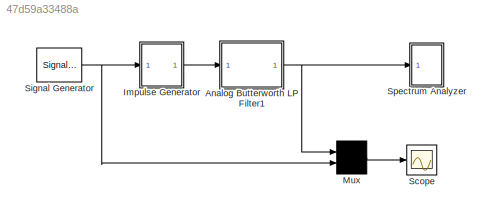
MODEL slx_47d59a33488a
KIND model
CONFIG AbsTol = 1e-6
CONFIG FixedStep = auto
CONFIG MaxStep = .05
CONFIG MinStep = auto
CONFIG RelTol = 1e-3
CONFIG SampleTimeConstraint = Unconstrained
CONFIG Solver = ode45
CONFIG SolverMode = SingleTasking
CONFIG SolverName = ode45
CONFIG StartTime = 0.0
CONFIG StopTime = 120.0
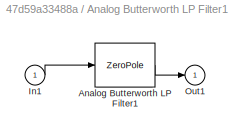
BLOCK [SubSystem] Analog Butterworth LP Filter1
  Ports = [1, 1]
  RequestExecContextInheritance = off
  Variant = off
BLOCK [ZeroPole] Analog Butterworth LP Filter1/Analog Butterworth LP Filter1
  Gain = k
  Poles = p
  Zeros = z
BLOCK [Inport] Analog Butterworth LP Filter1/In1
  IconDisplay = Port number
BLOCK [Outport] Analog Butterworth LP Filter1/Out1
  IconDisplay = Port number
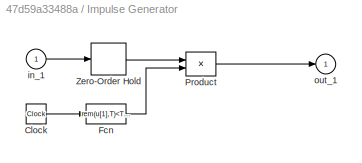
BLOCK [SubSystem] Impulse Generator
  Ports = [1, 1]
  RequestExecContextInheritance = off
  ShowPortLabels = none
  Variant = off
BLOCK [Clock] Impulse Generator/Clock
BLOCK [Fcn] Impulse Generator/Fcn
  Expr = rem(u[1],T)<T/L
BLOCK [Product] Impulse Generator/Product
  Ports = [2, 1]
BLOCK [ZeroOrderHold] Impulse Generator/Zero-Order Hold
  SampleTime = T
BLOCK [Inport] Impulse Generator/in_1
  IconDisplay = Port number
BLOCK [Outport] Impulse Generator/out_1
  IconDisplay = Port number
  InitialOutput = 0
BLOCK [Mux] Mux
  Inputs = 2
  Ports = [2, 1]
BLOCK [Scope] Scope
  Ports = [1]
  ScopeSpecificationString = Simulink.scopes.TimeScopeBlockCfg('CurrentConfiguration', extmgr.ConfigurationSet(extmgr.Configuration('Core','General UI',true),extmgr.Configuration('Core','Source UI',true),extmgr.Configuration('Sources','WiredSimulink',true,'DataLoggingSaveFormat','Array','DataLoggingLimitDataPoints',true,'DataLoggingDecimation','1','DataLoggingDecimateData',true),extmgr.Configuration('Visuals','Time Domain',tr...<+1767ch>
BLOCK [SignalGenerator] Signal Generator
  Amplitude = 1.000000
  Frequency = 0.8
  Ports = [0, 1]
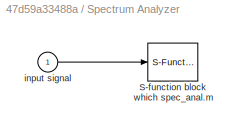
BLOCK [SubSystem] Spectrum Analyzer
  CopyFcn = sfunyst([],[],[],'CopyBlock')
  DeleteFcn = sfunyst([],[],[],'DeleteBlock')
  LoadFcn = sfunyst([],[],[],'LoadBlock')
  Ports = [1]
  RequestExecContextInheritance = off
  ShowPortLabels = none
  Variant = off
BLOCK [S-Function] Spectrum Analyzer/S-function block which spec_anal.m
  EnableBusSupport = off
  FunctionName = SpecAnal
  Parameters = N,T_s,plot_period
  Ports = [1]
  SFunctionDeploymentMode = off
BLOCK [Inport] Spectrum Analyzer/input signal
  IconDisplay = Port number
LINE Analog Butterworth LP Filter1/Analog Butterworth LP Filter1:1 -> Analog Butterworth LP Filter1/Out1:1
LINE Analog Butterworth LP Filter1/In1:1 -> Analog Butterworth LP Filter1/Analog Butterworth LP Filter1:1
NET Analog Butterworth LP Filter1:1 -> Mux:1, Spectrum Analyzer:1
LINE Impulse Generator/Clock:1 -> Impulse Generator/Fcn:1
LINE Impulse Generator/Fcn:1 -> Impulse Generator/Product:2
LINE Impulse Generator/Product:1 -> Impulse Generator/out_1:1
LINE Impulse Generator/Zero-Order Hold:1 -> Impulse Generator/Product:1
LINE Impulse Generator/in_1:1 -> Impulse Generator/Zero-Order Hold:1
LINE Impulse Generator:1 -> Analog Butterworth LP Filter1:1
LINE Mux:1 -> Scope:1
NET Signal Generator:1 -> Impulse Generator:1, Mux:2
LINE Spectrum Analyzer/input signal:1 -> Spectrum Analyzer/S-function block which spec_anal.m:1
note: NET lines group one-source signal fan-out (src -> all destinations, sorted); 1:1 wires keep LINE
